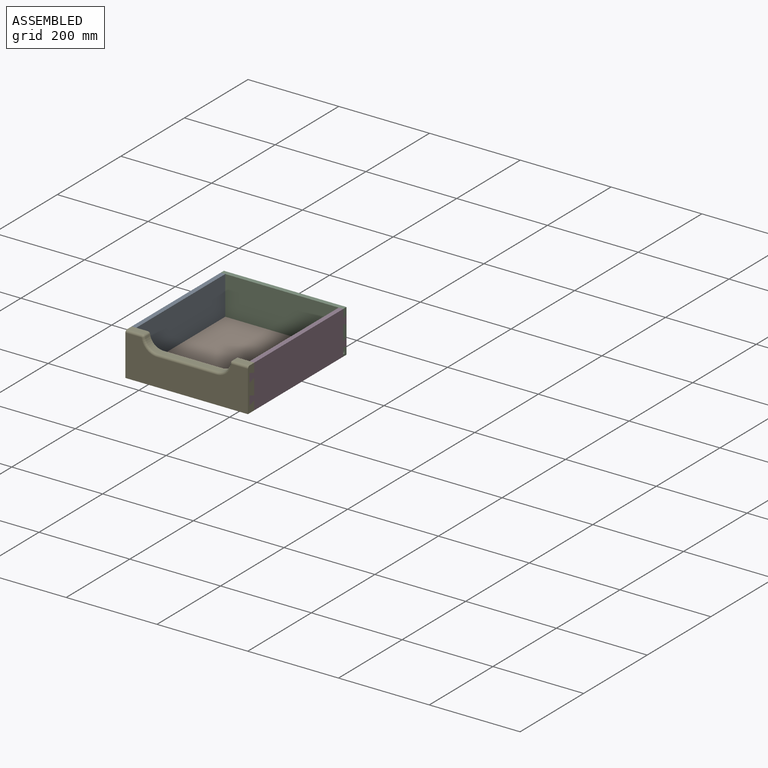
[diagram: assembled view]
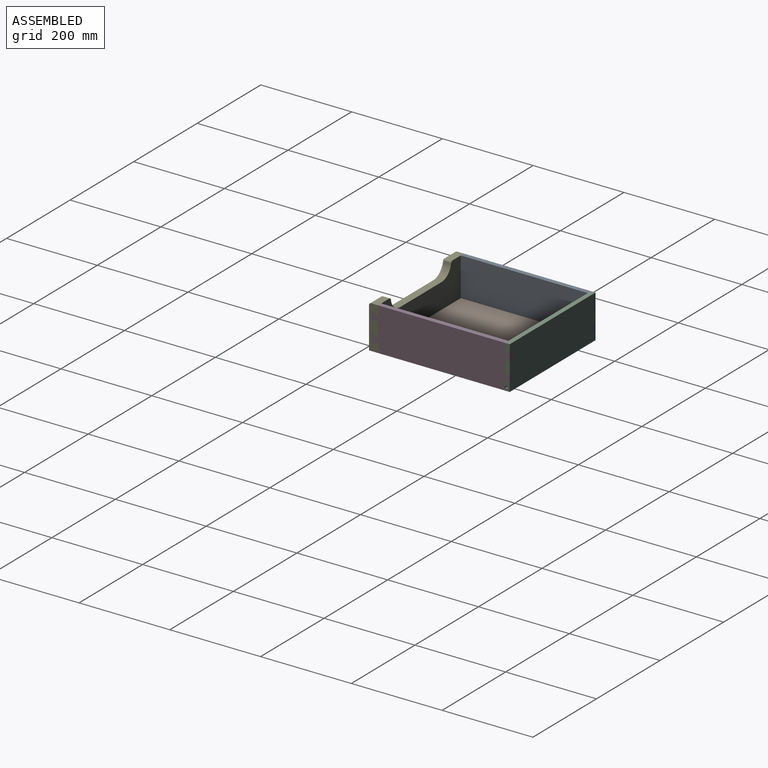
[diagram: assembled view, second angle]
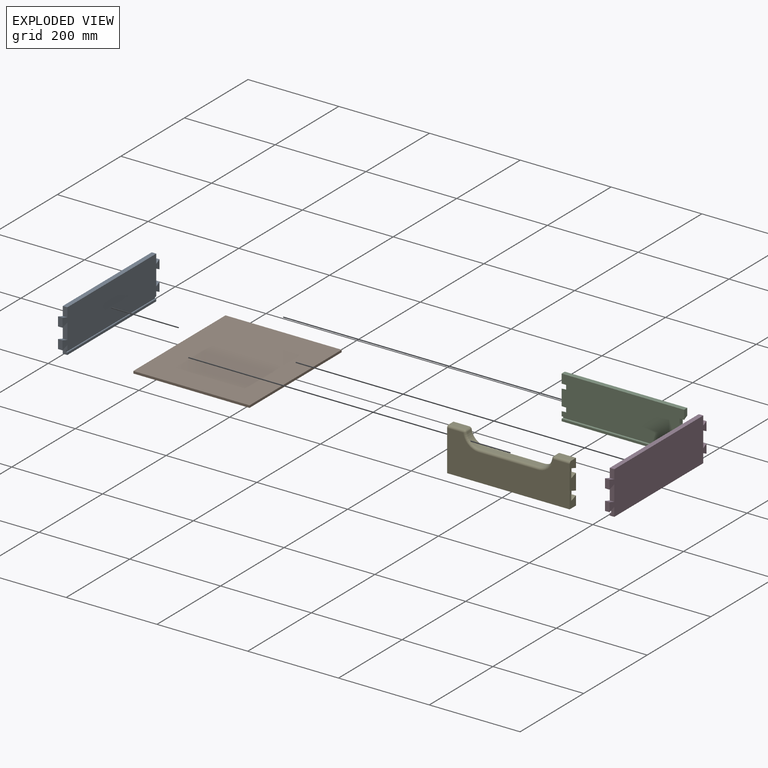
[diagram: exploded view]
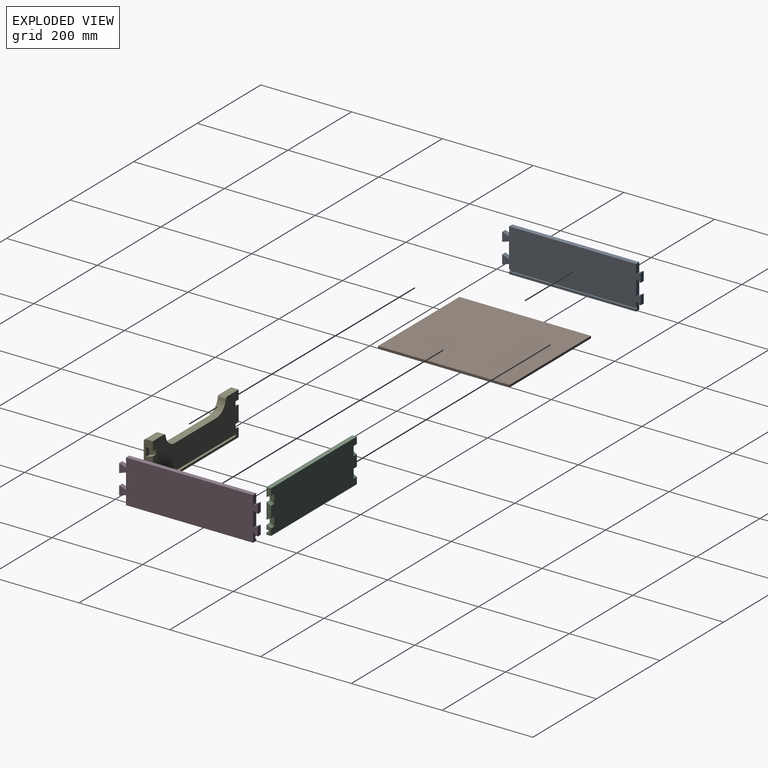
[diagram: exploded view, second angle]
ASSEMBLY  parts=5 mates=4
PART A: 26 faces, bbox 10x305x95 mm
  f0: plane 20x10mm, normal (0,1,0), area 200mm2, adj f4,f6,f19,f22
  f1: plane 20x10mm, normal (0,1,0), area 200mm2, adj f4,f6,f21,f24
  f2: plane 280x10mm, normal (0,0,1), area 2800mm2, adj f4,f6,f18,f25
  f3: plane 280x10mm, normal (0,0,-1), area 2800mm2, adj f5,f6,f10,f20
  f4: plane 305x85mm, normal (1,0,0), area 24550mm2, adj f0,f1,f2,f8,f10,f11,f12,f13
  f5: plane 280x5mm, normal (1,0,0), area 1400mm2, adj f3,f7,f10,f20
  f6: plane 305x95mm, normal (-1,0,0), area 27350mm2, adj f0,f1,f2,f3,f10,f11,f12,f13
  f7: plane 280x3mm, normal (0,0,1), area 840mm2, adj f5,f9,f10,f20
  f8: plane 280x3mm, normal (0,0,-1), area 840mm2, adj f4,f9,f10,f20
  f9: plane 280x5mm, normal (1,0,0), area 1400mm2, adj f7,f8,f10,f20
  f10: plane 20x10mm, normal (0,-1,0), area 185mm2, adj f3,f4,f5,f6,f7,f8,f9,f13
  f11: plane 20x10mm, normal (0,-1,0), area 200mm2, adj f4,f6,f14,f17
  f12: plane 20x10mm, normal (0,-1,0), area 200mm2, adj f4,f6,f13,f15
  f13: plane 15x10mm, normal (0,0.32,-0.95), area 158.1mm2, adj f4,f6,f10,f12
  f14: plane 15x10mm, normal (0,0.32,-0.95), area 158.1mm2, adj f4,f6,f11,f16
  f15: plane 15x10mm, normal (0,0.32,0.95), area 158.1mm2, adj f4,f6,f12,f16
  f16: plane 35x10mm, normal (0,-1,0), area 350mm2, adj f4,f6,f14,f15
  f17: plane 15x10mm, normal (0,0.32,0.95), area 158.1mm2, adj f4,f6,f11,f18
  f18: plane 20x10mm, normal (0,-1,0), area 200mm2, adj f2,f4,f6,f17
  f19: plane 10x10mm, normal (0,-0.45,-0.89), area 111.8mm2, adj f0,f4,f6,f20
  f20: plane 20x10mm, normal (0,1,0), area 185mm2, adj f3,f4,f5,f6,f7,f8,f9,f19
  f21: plane 10x10mm, normal (0,-0.45,-0.89), area 111.8mm2, adj f1,f4,f6,f23
  f22: plane 10x10mm, normal (0,-0.45,0.89), area 111.8mm2, adj f0,f4,f6,f23
  f23: plane 35x10mm, normal (0,1,0), area 350mm2, adj f4,f6,f21,f22
  f24: plane 10x10mm, normal (0,-0.45,0.89), area 111.8mm2, adj f1,f4,f6,f25
  f25: plane 20x10mm, normal (0,1,0), area 200mm2, adj f2,f4,f6,f24
PART B: 6 faces, bbox 256x290x5 mm
  f0: plane 256x5mm, normal (0,1,0), area 1280mm2, adj f1,f3,f4,f5
  f1: plane 290x5mm, normal (-1,0,0), area 1450mm2, adj f0,f2,f4,f5
  f2: plane 256x5mm, normal (0,-1,0), area 1280mm2, adj f1,f3,f4,f5
  f3: plane 290x5mm, normal (1,0,0), area 1450mm2, adj f0,f2,f4,f5
  f4: plane 290x256mm, normal (0,0,1), area 74240mm2, adj f0,f1,f2,f3
  f5: plane 290x256mm, normal (0,0,-1), area 74240mm2, adj f0,f1,f2,f3
PART C: 26 faces, bbox 270x10x95 mm
  f0: plane 270x85mm, normal (0,-1,0), area 22550mm2, adj f1,f2,f4,f5,f8,f9,f10,f11
  f1: plane 20x10mm, normal (-1,0,0), area 175mm2, adj f0,f4,f7,f11
  f2: plane 35x10mm, normal (-1,0,0), area 300mm2, adj f0,f7,f8,f12
  f3: plane 270x5mm, normal (0,-1,0), area 1350mm2, adj f5,f6,f15,f19
  f4: plane 270x10mm, normal (0,0,1), area 2700mm2, adj f0,f1,f7,f17
  f5: plane 20x10mm, normal (-1,0,0), area 150mm2, adj f0,f3,f6,f7,f9,f14,f15,f16
  f6: plane 270x10mm, normal (0,0,-1), area 2700mm2, adj f3,f5,f7,f19
  f7: plane 270x95mm, normal (0,1,0), area 24850mm2, adj f1,f2,f4,f5,f6,f8,f9,f10
  f8: plane 10x10mm, normal (0,0.45,-0.89), area 111.8mm2, adj f0,f2,f7,f10
  f9: plane 10x10mm, normal (0,0.45,0.89), area 111.8mm2, adj f0,f5,f7,f10
  f10: plane 20x10mm, normal (-1,0,0), area 150mm2, adj f0,f7,f8,f9
  f11: plane 10x10mm, normal (0,0.45,-0.89), area 111.8mm2, adj f0,f1,f7,f13
  f12: plane 10x10mm, normal (0,0.45,0.89), area 111.8mm2, adj f0,f2,f7,f13
  f13: plane 20x10mm, normal (-1,0,0), area 150mm2, adj f0,f7,f11,f12
  f14: plane 270x5mm, normal (0,0,-1), area 1350mm2, adj f0,f5,f16,f19
  f15: plane 270x5mm, normal (0,0,1), area 1350mm2, adj f3,f5,f16,f19
  f16: plane 270x5mm, normal (0,-1,0), area 1350mm2, adj f5,f14,f15,f19
  f17: plane 20x10mm, normal (1,0,0), area 175mm2, adj f0,f4,f7,f23
  f18: plane 35x10mm, normal (1,0,0), area 300mm2, adj f0,f7,f20,f24
  f19: plane 20x10mm, normal (1,0,0), area 150mm2, adj f0,f3,f6,f7,f14,f15,f16,f21
  f20: plane 10x10mm, normal (0,0.45,-0.89), area 111.8mm2, adj f0,f7,f18,f22
  f21: plane 10x10mm, normal (0,0.45,0.89), area 111.8mm2, adj f0,f7,f19,f22
  f22: plane 20x10mm, normal (1,0,0), area 150mm2, adj f0,f7,f20,f21
  f23: plane 10x10mm, normal (0,0.45,-0.89), area 111.8mm2, adj f0,f7,f17,f25
  f24: plane 10x10mm, normal (0,0.45,0.89), area 111.8mm2, adj f0,f7,f18,f25
  f25: plane 20x10mm, normal (1,0,0), area 150mm2, adj f0,f7,f23,f24
PART D: 26 faces, bbox 10x305x95 mm
  f0: plane 20x10mm, normal (0,1,0), area 200mm2, adj f2,f3,f21,f24
  f1: plane 20x10mm, normal (0,1,0), area 200mm2, adj f2,f3,f19,f23
  f2: plane 305x95mm, normal (1,0,0), area 27350mm2, adj f0,f1,f5,f6,f7,f8,f9,f10
  f3: plane 305x85mm, normal (-1,0,0), area 24550mm2, adj f0,f1,f5,f6,f7,f8,f10,f11
  f4: plane 280x5mm, normal (-1,0,0), area 1400mm2, adj f5,f9,f17,f20
  f5: plane 20x10mm, normal (0,-1,0), area 185mm2, adj f2,f3,f4,f9,f10,f16,f17,f18
  f6: plane 280x10mm, normal (0,0,1), area 2800mm2, adj f2,f3,f15,f25
  f7: plane 20x10mm, normal (0,-1,0), area 200mm2, adj f2,f3,f11,f14
  f8: plane 20x10mm, normal (0,-1,0), area 200mm2, adj f2,f3,f10,f12
  f9: plane 280x10mm, normal (0,0,-1), area 2800mm2, adj f2,f4,f5,f20
  f10: plane 15x10mm, normal (0,0.32,-0.95), area 158.1mm2, adj f2,f3,f5,f8
  f11: plane 15x10mm, normal (0,0.32,-0.95), area 158.1mm2, adj f2,f3,f7,f13
  f12: plane 15x10mm, normal (0,0.32,0.95), area 158.1mm2, adj f2,f3,f8,f13
  f13: plane 35x10mm, normal (0,-1,0), area 350mm2, adj f2,f3,f11,f12
  f14: plane 15x10mm, normal (0,0.32,0.95), area 158.1mm2, adj f2,f3,f7,f15
  f15: plane 20x10mm, normal (0,-1,0), area 200mm2, adj f2,f3,f6,f14
  f16: plane 280x3mm, normal (0,0,-1), area 840mm2, adj f3,f5,f18,f20
  f17: plane 280x3mm, normal (0,0,1), area 840mm2, adj f4,f5,f18,f20
  f18: plane 280x5mm, normal (-1,0,0), area 1400mm2, adj f5,f16,f17,f20
  f19: plane 10x10mm, normal (0,-0.45,-0.89), area 111.8mm2, adj f1,f2,f3,f20
  f20: plane 20x10mm, normal (0,1,0), area 185mm2, adj f2,f3,f4,f9,f16,f17,f18,f19
  f21: plane 10x10mm, normal (0,-0.45,-0.89), area 111.8mm2, adj f0,f2,f3,f22
  f22: plane 35x10mm, normal (0,1,0), area 350mm2, adj f2,f3,f21,f23
  f23: plane 10x10mm, normal (0,-0.45,0.89), area 111.8mm2, adj f1,f2,f3,f22
  f24: plane 10x10mm, normal (0,-0.45,0.89), area 111.8mm2, adj f0,f2,f3,f25
  f25: plane 20x10mm, normal (0,1,0), area 200mm2, adj f2,f3,f6,f24
PART E: 40 faces, bbox 270x20x95 mm
  f0: plane 270x95mm, normal (0,1,0), area 18647.8mm2, adj f1,f2,f3,f4,f5,f6,f7,f8
  f1: plane 95x20mm, normal (1,0,0), area 1444.6mm2, adj f0,f7,f8,f9,f21,f22,f23,f24
  f2: plane 95x20mm, normal (-1,0,0), area 1444.6mm2, adj f0,f6,f7,f9,f12,f13,f14,f16
  f3: cylinder r=30mm len=29.69mm, axis (0,1,0), area 642.4mm2, adj f0,f4,f11,f38
  f4: plane 130x15mm, normal (0,0,1), area 1950mm2, adj f0,f3,f5,f36
  f5: cylinder r=30mm len=29.69mm, axis (0,1,0), area 642.4mm2, adj f0,f4,f10,f35
  f6: plane 35.36x15mm, normal (0,0,1), area 530.4mm2, adj f0,f2,f10,f33
  f7: plane 270x20mm, normal (0,0,-1), area 5400mm2, adj f0,f1,f2,f9
  f8: plane 35.36x15mm, normal (0,0,1), area 530.4mm2, adj f0,f1,f11,f37
  f9: plane 270x90mm, normal (0,-1,0), area 18824.6mm2, adj f1,f2,f7,f33,f35,f36,f37,f38
  f10: cylinder r=5mm len=15mm, axis (0,1,0), area 107.1mm2, adj f0,f5,f6,f34
  f11: cylinder r=5mm len=15mm, axis (0,1,0), area 107.1mm2, adj f0,f3,f8,f39
  f12: plane 15x10mm, normal (0,-0.32,0.95), area 158.1mm2, adj f0,f2,f13,f15
  f13: plane 20x10mm, normal (0,1,0), area 200mm2, adj f2,f12,f14,f15
  f14: plane 15x10mm, normal (0,-0.32,-0.95), area 158.1mm2, adj f0,f2,f13,f15
  f15: plane 20x15mm, normal (-1,0,0), area 225mm2, adj f0,f12,f13,f14
  f16: plane 15x10mm, normal (0,-0.32,0.95), area 158.1mm2, adj f0,f2,f17,f19
  f17: plane 20x10mm, normal (0,1,0), area 200mm2, adj f2,f16,f18,f19
  f18: plane 15x10mm, normal (0,-0.32,-0.95), area 158.1mm2, adj f0,f2,f17,f19
  f19: plane 20x15mm, normal (-1,0,0), area 225mm2, adj f0,f16,f17,f18
  f20: plane 20x15mm, normal (1,0,0), area 225mm2, adj f0,f21,f22,f23
  f21: plane 20x10mm, normal (0,1,0), area 200mm2, adj f1,f20,f22,f23
  f22: plane 15x10mm, normal (0,-0.32,0.95), area 158.1mm2, adj f0,f1,f20,f21
  f23: plane 15x10mm, normal (0,-0.32,-0.95), area 158.1mm2, adj f0,f1,f20,f21
  f24: plane 15x10mm, normal (0,-0.32,0.95), area 158.1mm2, adj f0,f1,f25,f27
  f25: plane 20x10mm, normal (0,1,0), area 200mm2, adj f1,f24,f26,f27
  f26: plane 15x10mm, normal (0,-0.32,-0.95), area 158.1mm2, adj f0,f1,f25,f27
  f27: plane 20x15mm, normal (1,0,0), area 225mm2, adj f0,f24,f25,f26
  f28: plane 256x5mm, normal (0,0,-1), area 1280mm2, adj f0,f29,f31,f32
  f29: plane 5x5mm, normal (-1,0,0), area 25mm2, adj f0,f28,f30,f32
  f30: plane 256x5mm, normal (0,0,1), area 1280mm2, adj f0,f29,f31,f32
  f31: plane 5x5mm, normal (1,0,0), area 25mm2, adj f0,f28,f30,f32
  f32: plane 256x5mm, normal (0,1,0), area 1280mm2, adj f28,f29,f30,f31
  f33: cylinder r=5mm len=35.36mm, axis (1,0,0), area 277.7mm2, adj f2,f6,f9,f34
  f34: sphere r=5mm, area 35.7mm2, adj f10,f33,f35
  f35: torus R=35mm, axis (0,-1,0), area 356.7mm2, adj f5,f9,f34,f36
  f36: cylinder r=5mm len=130mm, axis (1,0,0), area 1021mm2, adj f4,f9,f35,f38
  f37: cylinder r=5mm len=35.36mm, axis (1,0,0), area 277.7mm2, adj f1,f8,f9,f39
  f38: torus R=35mm, axis (0,-1,0), area 356.7mm2, adj f3,f9,f36,f39
  f39: sphere r=5mm, area 35.7mm2, adj f11,f37,f38
PLACE A t=(-242.38,105.49,20.99)mm
PLACE B t=(-102.06,128.9,-13.1)mm
PLACE C t=(-174.44,328.03,21.94)mm
PLACE D t=(17.62,105.49,20.99)mm
PLACE E t=(-100.44,38.03,43.12)mm
MATE fastened C.f1 <-> A.f6  axis (-1,0,0) through (-242.38,318.03,56.9)mm
MATE fastened B.f2 <-> E.f32  axis (0,-1,0) through (20.62,33.03,-8.1)mm
MATE fastened E.f1 <-> D.f2  axis (1,0,0) through (27.62,23.03,6.9)mm
MATE fastened A.f6 <-> E.f2  axis (-1,0,0) through (-242.38,23.03,6.9)mm
